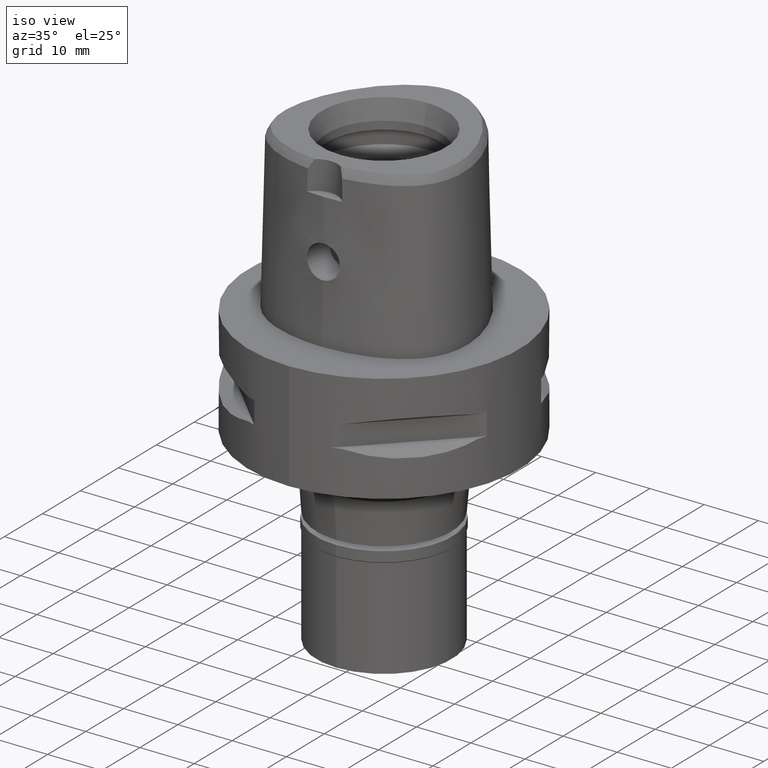
[diagram: clean part render]
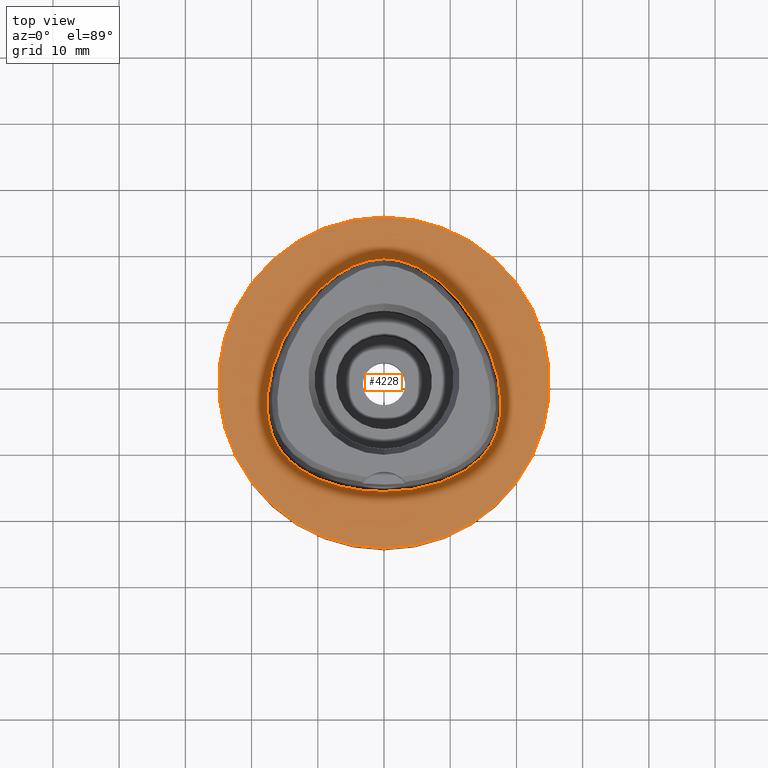
[diagram: tour spotlight — one face highlighted and labeled with its STEP entity id]
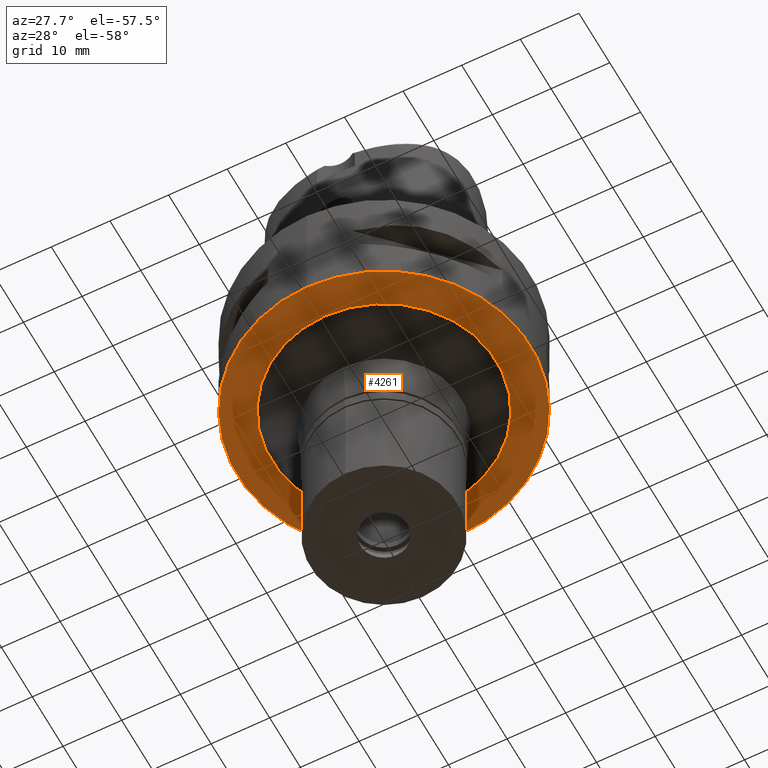
[diagram: tour spotlight — one face highlighted and labeled with its STEP entity id]
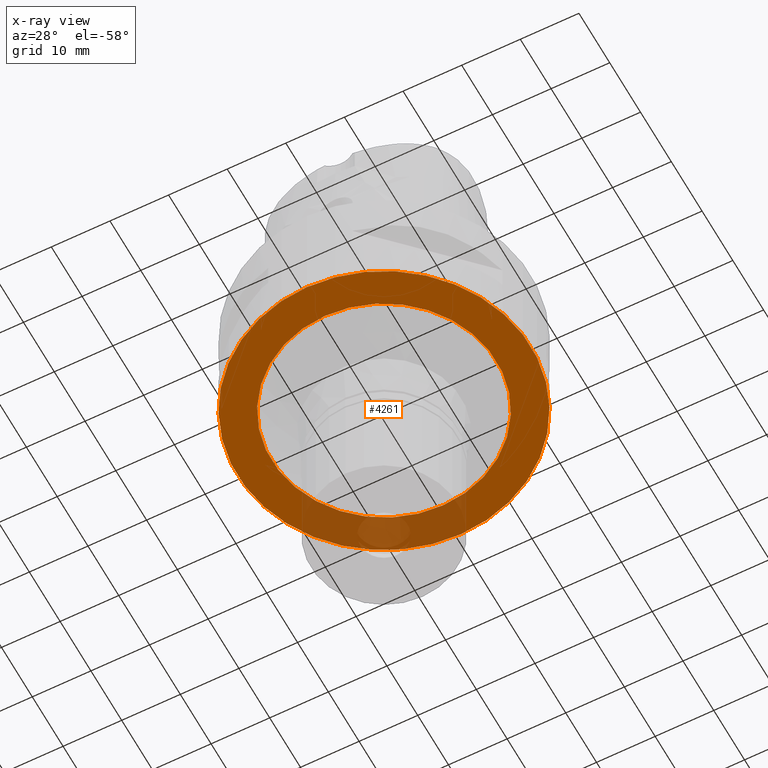
[diagram: x-ray of the same camera — body ghosted, this tour face saturated]
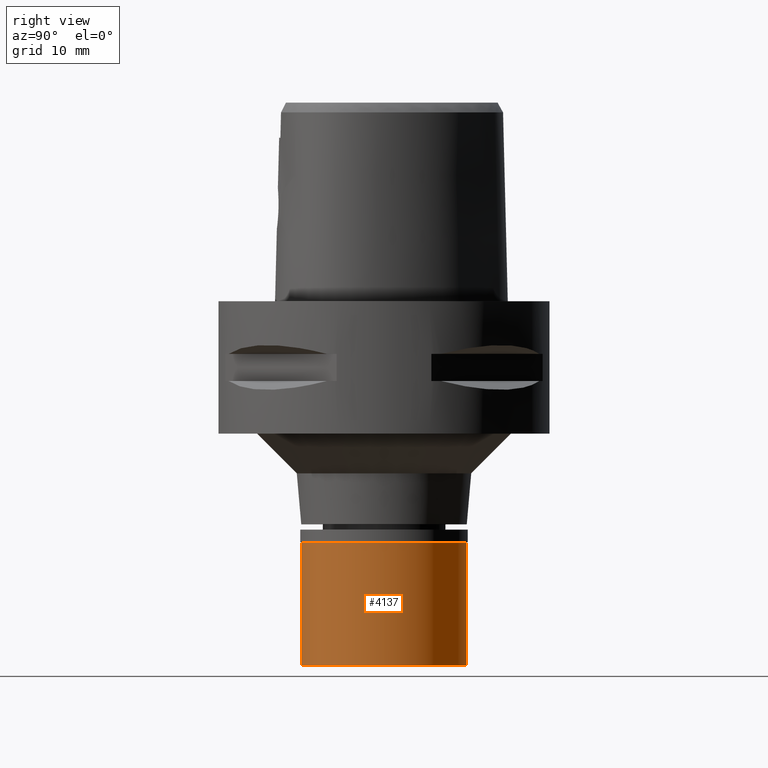
[diagram: tour spotlight — one face highlighted and labeled with its STEP entity id]
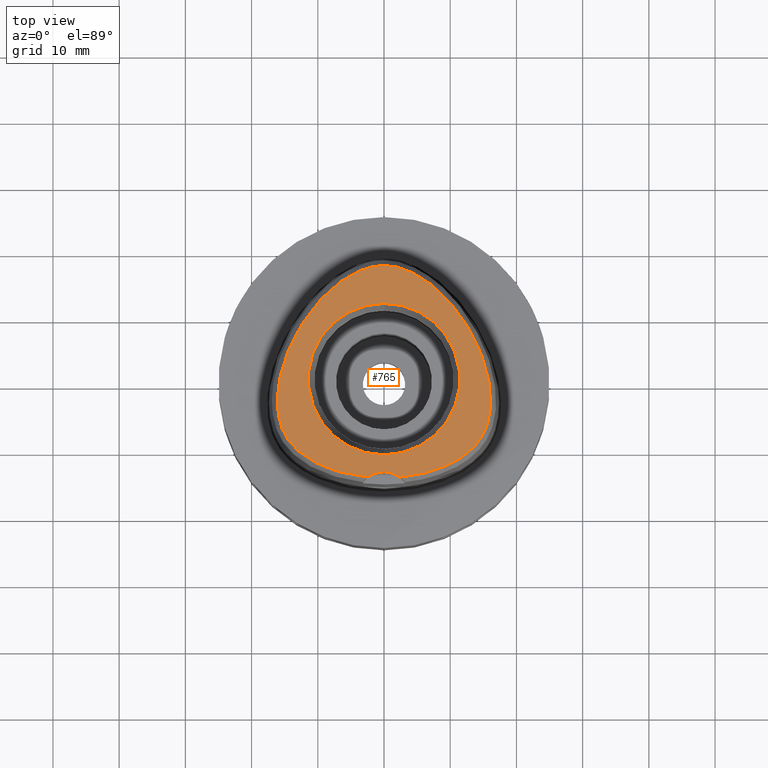
[diagram: tour spotlight — one face highlighted and labeled with its STEP entity id]
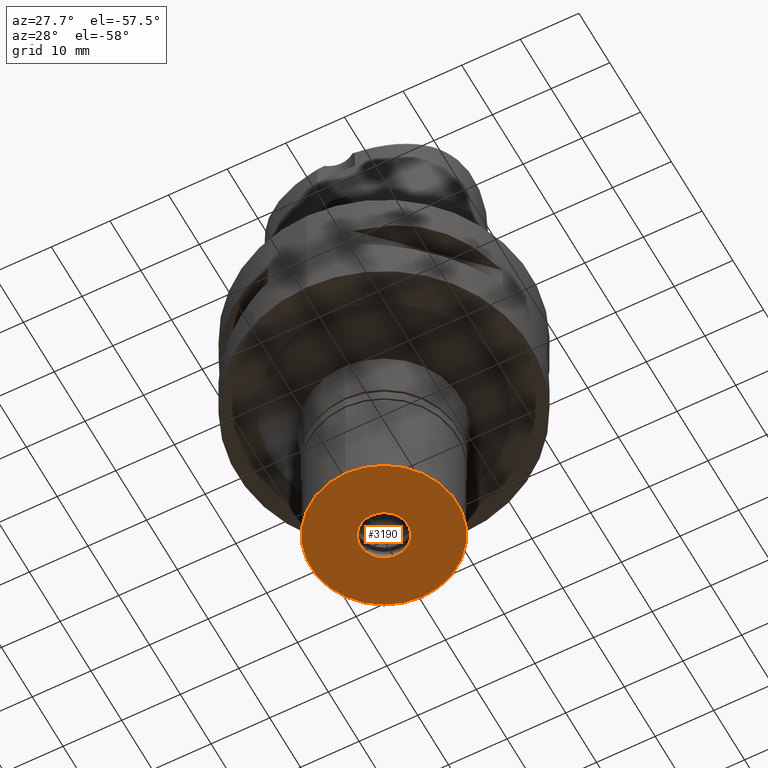
[diagram: tour spotlight — one face highlighted and labeled with its STEP entity id]
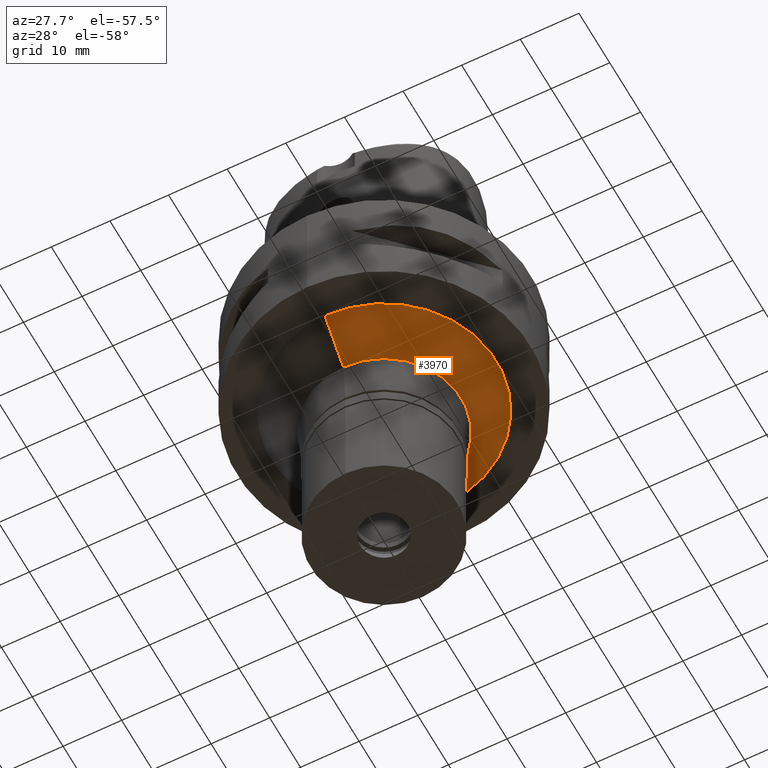
[diagram: tour spotlight — one face highlighted and labeled with its STEP entity id]
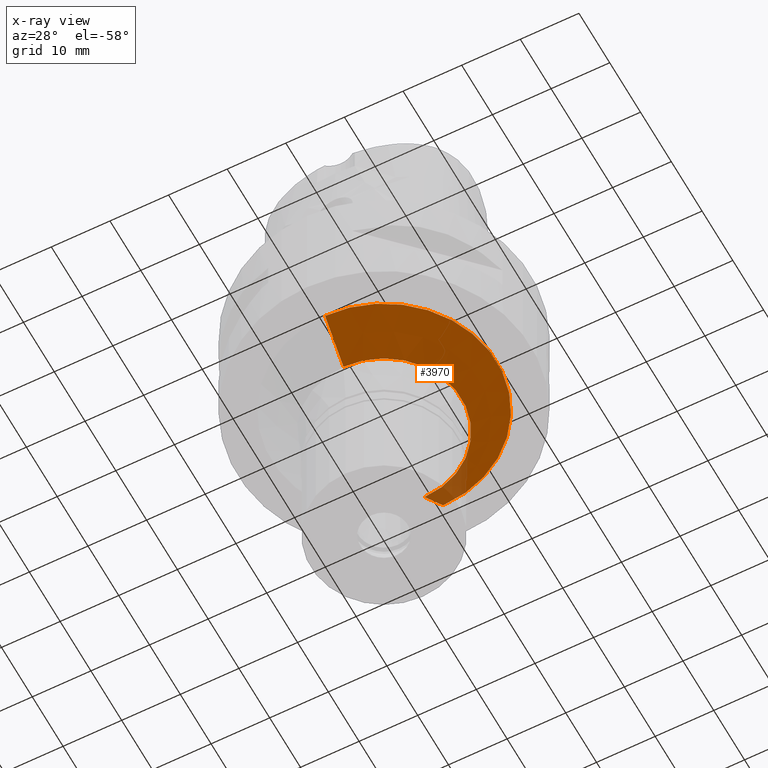
[diagram: x-ray of the same camera — body ghosted, this tour face saturated]
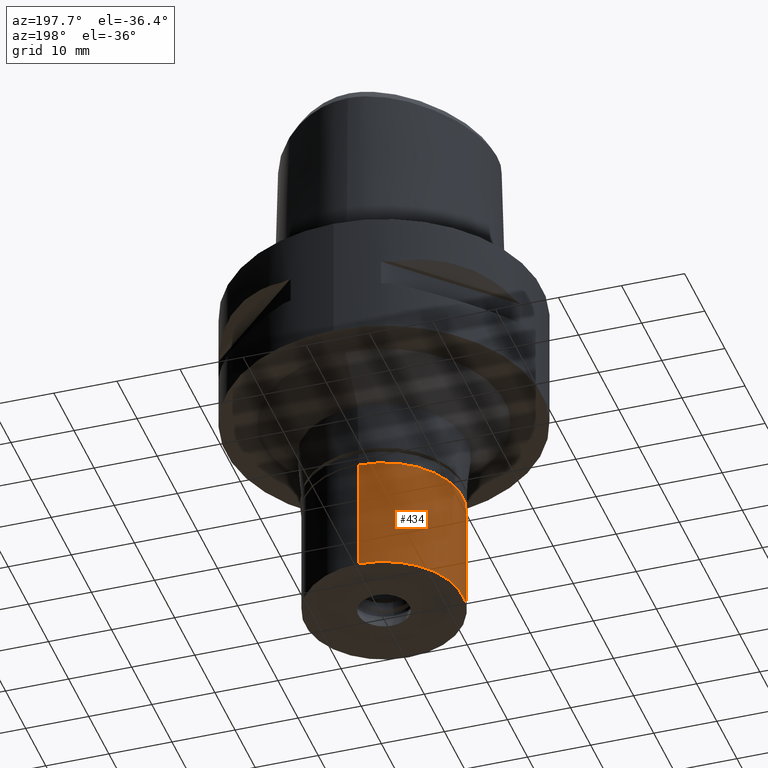
[diagram: tour spotlight — one face highlighted and labeled with its STEP entity id]
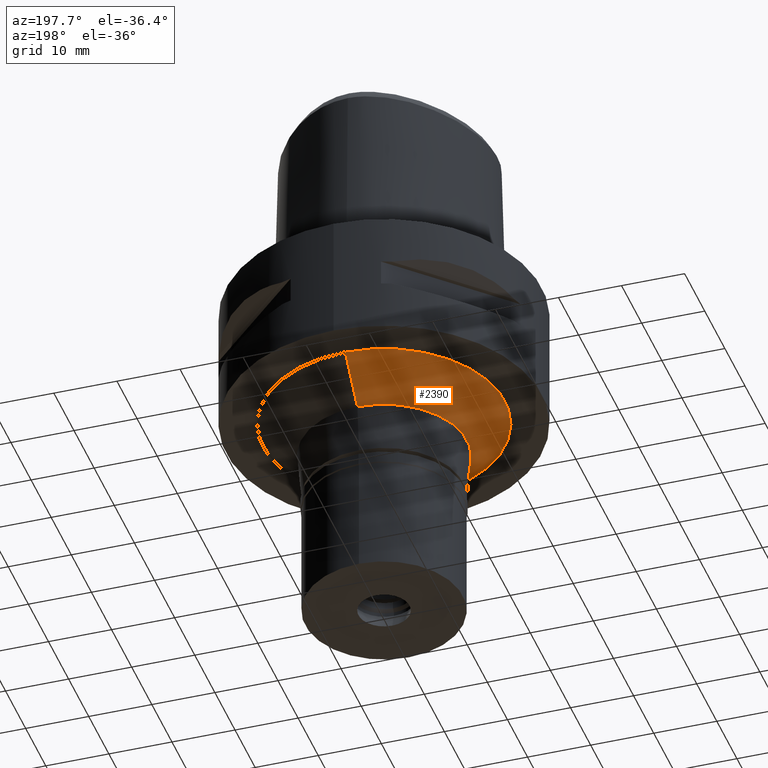
[diagram: tour spotlight — one face highlighted and labeled with its STEP entity id]
A machine part: a face-by-face anatomy tour. The part has 97 B-rep faces; the first image is the clean iso view, then the 8 largest visible faces are spotlighted one at a time (largest first), each with its STEP entity span.

Face 1 — top view, entity #4228. In plain terms, the highlighted planar face has unit normal (0, 0, -1).
Definition (entity closure, byte-faithful):
#140 = CARTESIAN_POINT ( 'NONE',  ( -16.66912842037839226, -8.445800780798439433, 4.443277703777316623E-08 ) ) ;
#197 = DIRECTION ( 'NONE',  ( 0.0000000000000000000, 1.000000000000000000, 0.0000000000000000000 ) ) ;
#202 = CARTESIAN_POINT ( 'NONE',  ( -6.810748086789999579E-14, -16.45500000000000185, 2.176407202607000168E-13 ) ) ;
#255 = CIRCLE ( 'NONE', #3500, 25.00000000000000000 ) ;
#285 = EDGE_CURVE ( 'NONE', #3784, #2383, #2960, .T. ) ;
#513 = CARTESIAN_POINT ( 'NONE',  ( -17.16495051673603811, -7.165908202807186989, 4.443277703777316623E-08 ) ) ;
#523 = EDGE_CURVE ( 'NONE', #2383, #3784, #255, .T. ) ;
#680 = ORIENTED_EDGE ( 'NONE', *, *, #1968, .F. ) ;
#740 = CARTESIAN_POINT ( 'NONE',  ( 7.967839668688589505, 15.83070313068314938, -2.866744383111380357E-07 ) ) ;
#760 = CARTESIAN_POINT ( 'NONE',  ( 17.56373943645514757, -5.455996094769079541, -2.866744383111380357E-07 ) ) ;
#798 = EDGE_LOOP ( 'NONE', ( #1086, #1602 ) ) ;
#809 = CARTESIAN_POINT ( 'NONE',  ( 0.6801907863886119676, 18.69500000716721644, -2.866744383111380357E-07 ) ) ;
#978 = B_SPLINE_CURVE_WITH_KNOTS ( 'NONE', 3,
 ( #4437, #1956, #3437, #1584, #1515, #3074, #4522, #1236, #4173, #4455, #2354, #513, #140, #2987, #1149, #1169, #2277, #3739, #1907, #2740, #3864, #202 ),
 .UNSPECIFIED., .F., .F.,
 ( 4, 1, 1, 1, 1, 1, 1, 1, 1, 1, 1, 1, 1, 1, 1, 1, 1, 1, 1, 4 ),
 ( 0.0000000000000000000, 0.04166666666892000076, 0.08333333333549000632, 0.1666666666687000031, 0.2500000000018000046, 0.3333333333349000061, 0.4166666666681000386, 0.5000000000012000401, 0.5416666666678000563, 0.5833333333343000415, 0.6250000000008999468, 0.6458333333342000104, 0.6666666666675000741, 0.6875000000008000267, 0.7083333333340000593, 0.7500000000005999645, 0.7916666666673000119, 0.8333333333337999971, 0.9166666666670000296, 1.000000000000000000 ),
 .UNSPECIFIED. ) ;
#985 = CARTESIAN_POINT ( 'NONE',  ( -6.810748086789999579E-14, -16.45500000000000185, 2.176407202607000168E-13 ) ) ;
#1086 = ORIENTED_EDGE ( 'NONE', *, *, #285, .F. ) ;
#1105 = CARTESIAN_POINT ( 'NONE',  ( 1.147843598989999933E-10, 18.69499999997000117, 2.164194749336000005E-13 ) ) ;
#1132 = CARTESIAN_POINT ( 'NONE',  ( 2.040572359143327130, 18.55015625706449001, -2.866744383111380357E-07 ) ) ;
#1149 = CARTESIAN_POINT ( 'NONE',  ( -15.64884224165484561, -10.21298828059129171, 4.443277703777316623E-08 ) ) ;
#1169 = CARTESIAN_POINT ( 'NONE',  ( -14.78833380319430013, -11.28232910079319673, 4.443277703777316623E-08 ) ) ;
#1189 = CARTESIAN_POINT ( 'NONE',  ( 0.0000000000000000000, -25.00000000000000000, 0.0000000000000000000 ) ) ;
#1229 = DIRECTION ( 'NONE',  ( 0.0000000000000000000, 0.0000000000000000000, -1.000000000000000000 ) ) ;
#1236 = CARTESIAN_POINT ( 'NONE',  ( -16.51672824674871265, 3.703437499621182738, 4.443277703777316623E-08 ) ) ;
#1269 = DIRECTION ( 'NONE',  ( 0.0000000000000000000, 0.0000000000000000000, -1.000000000000000000 ) ) ;
#1289 = FACE_BOUND ( 'NONE', #3171, .T. ) ;
#1333 = CARTESIAN_POINT ( 'NONE',  ( 14.78833380921588869, -11.28232910651468579, -2.866744383111380357E-07 ) ) ;
#1450 = CARTESIAN_POINT ( 'NONE',  ( 16.66912842795766281, -8.445800784167504460, -2.866744383111380357E-07 ) ) ;
#1453 = AXIS2_PLACEMENT_3D ( 'NONE', #2769, #1269, #4503 ) ;
#1515 = CARTESIAN_POINT ( 'NONE',  ( -7.967839663532677363, 15.83070312411947000, 4.443277703777316623E-08 ) ) ;
#1543 = CARTESIAN_POINT ( 'NONE',  ( 17.16495052469673865, -7.165908205171586332, -2.866744383111380357E-07 ) ) ;
#1545 = PLANE ( 'NONE',  #1453 ) ;
#1584 = CARTESIAN_POINT ( 'NONE',  ( -4.728927206338632061, 17.73480468648083885, 4.443277703777316623E-08 ) ) ;
#1602 = ORIENTED_EDGE ( 'NONE', *, *, #523, .F. ) ;
#1802 = CARTESIAN_POINT ( 'NONE',  ( 0.0000000000000000000, 25.00000000000000000, 0.0000000000000000000 ) ) ;
#1872 = B_SPLINE_CURVE_WITH_KNOTS ( 'NONE', 3,
 ( #985, #2451, #4270, #3178, #3912, #4622, #1333, #2816, #3393, #1450, #1543, #760, #4106, #4418, #2225, #4440, #4130, #740, #4080, #1132, #809, #2253 ),
 .UNSPECIFIED., .F., .F.,
 ( 4, 1, 1, 1, 1, 1, 1, 1, 1, 1, 1, 1, 1, 1, 1, 1, 1, 1, 1, 4 ),
 ( 0.0000000000000000000, 0.08333333333324000058, 0.1666666666665000129, 0.2083333333331000015, 0.2499999999996999900, 0.2916666666664000096, 0.3124999999996999622, 0.3333333333328999948, 0.3541666666663000340, 0.3749999999995999866, 0.4166666666663000340, 0.4583333333328000192, 0.4999999999994999555, 0.5833333333326999881, 0.6666666666660000518, 0.7499999999991999733, 0.8333333333324000058, 0.9166666666657000695, 0.9583333333322999747, 1.000000000000000000 ),
 .UNSPECIFIED. ) ;
#1907 = CARTESIAN_POINT ( 'NONE',  ( -8.946741555804317514, -15.03902343644933559, 4.443277703777316623E-08 ) ) ;
#1956 = CARTESIAN_POINT ( 'NONE',  ( -0.6801907857718990646, 18.69499999889379183, 4.443277703777315961E-08 ) ) ;
#1968 = EDGE_CURVE ( 'NONE', #2268, #3157, #978, .T. ) ;
#2139 = CARTESIAN_POINT ( 'NONE',  ( -6.810748086789999579E-14, -16.45500000000000185, 2.176407202607000168E-13 ) ) ;
#2225 = CARTESIAN_POINT ( 'NONE',  ( 16.51672825458816618, 3.703437502445888541, -2.866744383111380357E-07 ) ) ;
#2253 = CARTESIAN_POINT ( 'NONE',  ( 1.147843598989999933E-10, 18.69499999997000117, 2.164194749336000005E-13 ) ) ;
#2268 = VERTEX_POINT ( 'NONE', #1105 ) ;
#2277 = CARTESIAN_POINT ( 'NONE',  ( -13.50690093411496306, -12.48264648350073003, 4.443277703777316623E-08 ) ) ;
#2354 = CARTESIAN_POINT ( 'NONE',  ( -17.56373942823087120, -5.455996093592093921, 4.443277703777316623E-08 ) ) ;
#2383 = VERTEX_POINT ( 'NONE', #1189 ) ;
#2451 = CARTESIAN_POINT ( 'NONE',  ( 1.683697722949345277, -16.45500000716620193, -2.866744383111379827E-07 ) ) ;
#2740 = CARTESIAN_POINT ( 'NONE',  ( -5.051093167375960924, -16.15562499889601611, 4.443277703777316623E-08 ) ) ;
#2769 = CARTESIAN_POINT ( 'NONE',  ( 0.0000000000000000000, 1.224646799146999965E-14, 0.0000000000000000000 ) ) ;
#2816 = CARTESIAN_POINT ( 'NONE',  ( 15.64884224836528936, -10.21298828547461568, -2.866744383111380357E-07 ) ) ;
#2889 = DIRECTION ( 'NONE',  ( 0.0000000000000000000, -1.000000000000000000, 0.0000000000000000000 ) ) ;
#2960 = CIRCLE ( 'NONE', #3791, 25.00000000000000000 ) ;
#2987 = CARTESIAN_POINT ( 'NONE',  ( -16.20602471867586658, -9.356552733818441325, 4.443277703777316623E-08 ) ) ;
#3043 = ORIENTED_EDGE ( 'NONE', *, *, #3581, .F. ) ;
#3074 = CARTESIAN_POINT ( 'NONE',  ( -11.46563507937857729, 12.45218749927797752, 4.443277703777316623E-08 ) ) ;
#3157 = VERTEX_POINT ( 'NONE', #2139 ) ;
#3171 = EDGE_LOOP ( 'NONE', ( #680, #3043 ) ) ;
#3178 = CARTESIAN_POINT ( 'NONE',  ( 8.946741558643028114, -15.03902344427322113, -2.866744383111380357E-07 ) ) ;
#3393 = CARTESIAN_POINT ( 'NONE',  ( 16.20602472585592579, -9.356552737964948463, -2.866744383111380357E-07 ) ) ;
#3437 = CARTESIAN_POINT ( 'NONE',  ( -2.040572357437918427, 18.55015624889870551, 4.443277703777316623E-08 ) ) ;
#3484 = CARTESIAN_POINT ( 'NONE',  ( 0.0000000000000000000, 1.254528181046999847E-14, 0.0000000000000000000 ) ) ;
#3500 = AXIS2_PLACEMENT_3D ( 'NONE', #4746, #3987, #2889 ) ;
#3581 = EDGE_CURVE ( 'NONE', #3157, #2268, #1872, .T. ) ;
#3739 = CARTESIAN_POINT ( 'NONE',  ( -11.68694516528609739, -13.70394531153452178, 4.443277703777316623E-08 ) ) ;
#3784 = VERTEX_POINT ( 'NONE', #1802 ) ;
#3791 = AXIS2_PLACEMENT_3D ( 'NONE', #3484, #1229, #197 ) ;
#3800 = FACE_OUTER_BOUND ( 'NONE', #798, .T. ) ;
#3864 = CARTESIAN_POINT ( 'NONE',  ( -1.683697722462703439, -16.45499999888638953, 4.443277703777316623E-08 ) ) ;
#3912 = CARTESIAN_POINT ( 'NONE',  ( 11.68694516939769557, -13.70394531874968536, -2.866744383111380357E-07 ) ) ;
#3987 = DIRECTION ( 'NONE',  ( 0.0000000000000000000, 0.0000000000000000000, -1.000000000000000000 ) ) ;
#4080 = CARTESIAN_POINT ( 'NONE',  ( 4.728927209895946504, 17.73480469404342585, -2.866744383111380357E-07 ) ) ;
#4106 = CARTESIAN_POINT ( 'NONE',  ( 17.71143736280363257, -3.269218749953516134, -2.866744383111380357E-07 ) ) ;
#4130 = CARTESIAN_POINT ( 'NONE',  ( 11.46563508573905565, 12.45218750464827195, -2.866744383111380357E-07 ) ) ;
#4173 = CARTESIAN_POINT ( 'NONE',  ( -17.49754712197084672, -0.2285937501950306705, 4.443277703777316623E-08 ) ) ;
#4228 = ADVANCED_FACE ( 'NONE', ( #3800, #1289 ), #1545, .F. ) ;
#4270 = CARTESIAN_POINT ( 'NONE',  ( 5.051093168843441283, -16.15562500709472360, -2.866744383111380357E-07 ) ) ;
#4418 = CARTESIAN_POINT ( 'NONE',  ( 17.49754713017080832, -0.2285937487416755398, -2.866744383111380357E-07 ) ) ;
#4437 = CARTESIAN_POINT ( 'NONE',  ( 1.147843598989999933E-10, 18.69499999997000117, 2.164194749336000005E-13 ) ) ;
#4440 = CARTESIAN_POINT ( 'NONE',  ( 14.38008120313528160, 8.302343753601144627, -2.866744383111380357E-07 ) ) ;
#4455 = CARTESIAN_POINT ( 'NONE',  ( -17.71143735449694745, -3.269218750007801155, 4.443277703777316623E-08 ) ) ;
#4503 = DIRECTION ( 'NONE',  ( 0.0000000000000000000, -1.000000000000000000, 0.0000000000000000000 ) ) ;
#4522 = CARTESIAN_POINT ( 'NONE',  ( -14.38008119593263423, 8.302343749441114085, 4.443277703777316623E-08 ) ) ;
#4622 = CARTESIAN_POINT ( 'NONE',  ( 13.50690093924401936, -12.48264649003484550, -2.866744383111380357E-07 ) ) ;
#4746 = CARTESIAN_POINT ( 'NONE',  ( 0.0000000000000000000, 1.254528181046999847E-14, 0.0000000000000000000 ) ) ;

Face 2 — auxiliary view, entity #4261. An x-ray twin of the same camera follows (body ghosted, this face saturated) — the face is partly hidden behind the body. In plain terms, the highlighted planar face has unit normal (0, 0, -1).
Definition (entity closure, byte-faithful):
#143 = CIRCLE ( 'NONE', #1019, 19.17366270915000115 ) ;
#172 = DIRECTION ( 'NONE',  ( 0.0000000000000000000, 0.0000000000000000000, -1.000000000000000000 ) ) ;
#183 = PLANE ( 'NONE',  #1600 ) ;
#301 = EDGE_CURVE ( 'NONE', #1958, #1375, #4165, .T. ) ;
#391 = AXIS2_PLACEMENT_3D ( 'NONE', #1937, #2360, #1590 ) ;
#527 = ORIENTED_EDGE ( 'NONE', *, *, #301, .F. ) ;
#545 = DIRECTION ( 'NONE',  ( 0.0000000000000000000, 0.0000000000000000000, -1.000000000000000000 ) ) ;
#604 = DIRECTION ( 'NONE',  ( 0.0000000000000000000, -1.000000000000000000, 0.0000000000000000000 ) ) ;
#616 = EDGE_LOOP ( 'NONE', ( #3924, #4583 ) ) ;
#768 = CIRCLE ( 'NONE', #391, 25.00000000000000000 ) ;
#887 = DIRECTION ( 'NONE',  ( 0.0000000000000000000, 0.0000000000000000000, -1.000000000000000000 ) ) ;
#912 = FACE_BOUND ( 'NONE', #616, .T. ) ;
#947 = CARTESIAN_POINT ( 'NONE',  ( 0.0000000000000000000, 25.00000000000000000, -20.00000000000000000 ) ) ;
#1019 = AXIS2_PLACEMENT_3D ( 'NONE', #3846, #545, #2008 ) ;
#1242 = CARTESIAN_POINT ( 'NONE',  ( 0.0000000000000000000, 0.0000000000000000000, -20.00000000000000000 ) ) ;
#1375 = VERTEX_POINT ( 'NONE', #947 ) ;
#1590 = DIRECTION ( 'NONE',  ( 0.0000000000000000000, 1.000000000000000000, 0.0000000000000000000 ) ) ;
#1600 = AXIS2_PLACEMENT_3D ( 'NONE', #1242, #887, #1616 ) ;
#1607 = CARTESIAN_POINT ( 'NONE',  ( 0.0000000000000000000, 0.0000000000000000000, -20.00000000000000000 ) ) ;
#1616 = DIRECTION ( 'NONE',  ( 0.0000000000000000000, -1.000000000000000000, 0.0000000000000000000 ) ) ;
#1654 = CARTESIAN_POINT ( 'NONE',  ( 0.0000000000000000000, 1.254528181046999847E-14, -20.00000000000000000 ) ) ;
#1762 = AXIS2_PLACEMENT_3D ( 'NONE', #1607, #172, #604 ) ;
#1935 = CARTESIAN_POINT ( 'NONE',  ( 0.0000000000000000000, 19.17366270915000115, -20.00000000000000000 ) ) ;
#1937 = CARTESIAN_POINT ( 'NONE',  ( 0.0000000000000000000, 1.254528181046999847E-14, -20.00000000000000000 ) ) ;
#1958 = VERTEX_POINT ( 'NONE', #4102 ) ;
#2008 = DIRECTION ( 'NONE',  ( 0.0000000000000000000, 1.000000000000000000, 0.0000000000000000000 ) ) ;
#2026 = DIRECTION ( 'NONE',  ( 0.0000000000000000000, -1.000000000000000000, 0.0000000000000000000 ) ) ;
#2304 = FACE_OUTER_BOUND ( 'NONE', #4168, .T. ) ;
#2348 = DIRECTION ( 'NONE',  ( 0.0000000000000000000, 0.0000000000000000000, 1.000000000000000000 ) ) ;
#2360 = DIRECTION ( 'NONE',  ( 0.0000000000000000000, 0.0000000000000000000, 1.000000000000000000 ) ) ;
#2693 = CIRCLE ( 'NONE', #1762, 19.17366270915000115 ) ;
#3532 = EDGE_CURVE ( 'NONE', #4113, #3731, #2693, .T. ) ;
#3731 = VERTEX_POINT ( 'NONE', #1935 ) ;
#3846 = CARTESIAN_POINT ( 'NONE',  ( 0.0000000000000000000, 0.0000000000000000000, -20.00000000000000000 ) ) ;
#3924 = ORIENTED_EDGE ( 'NONE', *, *, #4311, .F. ) ;
#4102 = CARTESIAN_POINT ( 'NONE',  ( 0.0000000000000000000, -25.00000000000000000, -20.00000000000000000 ) ) ;
#4113 = VERTEX_POINT ( 'NONE', #4463 ) ;
#4138 = EDGE_CURVE ( 'NONE', #1375, #1958, #768, .T. ) ;
#4165 = CIRCLE ( 'NONE', #4469, 25.00000000000000000 ) ;
#4168 = EDGE_LOOP ( 'NONE', ( #4221, #527 ) ) ;
#4221 = ORIENTED_EDGE ( 'NONE', *, *, #4138, .F. ) ;
#4261 = ADVANCED_FACE ( 'NONE', ( #2304, #912 ), #183, .T. ) ;
#4311 = EDGE_CURVE ( 'NONE', #3731, #4113, #143, .T. ) ;
#4463 = CARTESIAN_POINT ( 'NONE',  ( 0.0000000000000000000, -19.17366270915000115, -20.00000000000000000 ) ) ;
#4469 = AXIS2_PLACEMENT_3D ( 'NONE', #1654, #2348, #2026 ) ;
#4583 = ORIENTED_EDGE ( 'NONE', *, *, #3532, .F. ) ;

Face 3 — right view, entity #4137. In plain terms, the highlighted cylindrical surface (partial cylindrical patch) has radius 12.5 mm, axis along (0, 0, -1).
Definition (entity closure, byte-faithful):
#82 = DIRECTION ( 'NONE',  ( 0.0000000000000000000, 0.0000000000000000000, -1.000000000000000000 ) ) ;
#350 = EDGE_CURVE ( 'NONE', #1885, #3994, #4400, .T. ) ;
#433 = DIRECTION ( 'NONE',  ( 0.0000000000000000000, 0.0000000000000000000, -1.000000000000000000 ) ) ;
#526 = DIRECTION ( 'NONE',  ( 0.0000000000000000000, 0.0000000000000000000, -1.000000000000000000 ) ) ;
#704 = VERTEX_POINT ( 'NONE', #1878 ) ;
#941 = CARTESIAN_POINT ( 'NONE',  ( 0.0000000000000000000, 0.0000000000000000000, 0.0000000000000000000 ) ) ;
#958 = DIRECTION ( 'NONE',  ( 0.0000000000000000000, 0.0000000000000000000, 1.000000000000000000 ) ) ;
#974 = DIRECTION ( 'NONE',  ( 0.0000000000000000000, 0.0000000000000000000, -1.000000000000000000 ) ) ;
#983 = CARTESIAN_POINT ( 'NONE',  ( 0.0000000000000000000, 0.0000000000000000000, -20.50000000000000000 ) ) ;
#1002 = ORIENTED_EDGE ( 'NONE', *, *, #2884, .F. ) ;
#1538 = CARTESIAN_POINT ( 'NONE',  ( 0.0000000000000000000, -12.50000000000000000, -20.50000000000000000 ) ) ;
#1546 = VECTOR ( 'NONE', #526, 1000.000000000000000 ) ;
#1705 = AXIS2_PLACEMENT_3D ( 'NONE', #2092, #974, #1988 ) ;
#1757 = CARTESIAN_POINT ( 'NONE',  ( 0.0000000000000000000, 12.50000000000000000, -2.000000000000000000 ) ) ;
#1878 = CARTESIAN_POINT ( 'NONE',  ( 0.0000000000000000000, -12.50000000000000000, -2.000000000000000000 ) ) ;
#1885 = VERTEX_POINT ( 'NONE', #1538 ) ;
#1988 = DIRECTION ( 'NONE',  ( 0.0000000000000000000, 1.000000000000000000, 0.0000000000000000000 ) ) ;
#2092 = CARTESIAN_POINT ( 'NONE',  ( 0.0000000000000000000, 0.0000000000000000000, -2.000000000000000000 ) ) ;
#2420 = AXIS2_PLACEMENT_3D ( 'NONE', #983, #958, #4190 ) ;
#2516 = VERTEX_POINT ( 'NONE', #1757 ) ;
#2631 = ORIENTED_EDGE ( 'NONE', *, *, #2949, .T. ) ;
#2671 = LINE ( 'NONE', #4086, #4539 ) ;
#2716 = CIRCLE ( 'NONE', #1705, 12.50000000000000000 ) ;
#2884 = EDGE_CURVE ( 'NONE', #2516, #3994, #2671, .T. ) ;
#2921 = CARTESIAN_POINT ( 'NONE',  ( 0.0000000000000000000, 12.50000000000000000, -20.50000000000000000 ) ) ;
#2949 = EDGE_CURVE ( 'NONE', #704, #1885, #3473, .T. ) ;
#3092 = EDGE_CURVE ( 'NONE', #2516, #704, #2716, .T. ) ;
#3203 = ORIENTED_EDGE ( 'NONE', *, *, #350, .T. ) ;
#3467 = DIRECTION ( 'NONE',  ( 0.0000000000000000000, -1.000000000000000000, 0.0000000000000000000 ) ) ;
#3471 = AXIS2_PLACEMENT_3D ( 'NONE', #941, #82, #3467 ) ;
#3473 = LINE ( 'NONE', #4587, #1546 ) ;
#3768 = CYLINDRICAL_SURFACE ( 'NONE', #3471, 12.50000000000000000 ) ;
#3874 = EDGE_LOOP ( 'NONE', ( #4447, #2631, #3203, #1002 ) ) ;
#3994 = VERTEX_POINT ( 'NONE', #2921 ) ;
#4086 = CARTESIAN_POINT ( 'NONE',  ( 0.0000000000000000000, 12.50000000000000000, -2.000000000000000000 ) ) ;
#4137 = ADVANCED_FACE ( 'NONE', ( #4556 ), #3768, .T. ) ;
#4190 = DIRECTION ( 'NONE',  ( 0.0000000000000000000, -1.000000000000000000, 0.0000000000000000000 ) ) ;
#4400 = CIRCLE ( 'NONE', #2420, 12.50000000000000000 ) ;
#4447 = ORIENTED_EDGE ( 'NONE', *, *, #3092, .T. ) ;
#4539 = VECTOR ( 'NONE', #433, 1000.000000000000000 ) ;
#4556 = FACE_OUTER_BOUND ( 'NONE', #3874, .T. ) ;
#4587 = CARTESIAN_POINT ( 'NONE',  ( 0.0000000000000000000, -12.50000000000000000, -2.000000000000000000 ) ) ;

Face 4 — top view, entity #765. In plain terms, the highlighted planar face has unit normal (0, 0, 1).
Definition (entity closure, byte-faithful):
#12 = CARTESIAN_POINT ( 'NONE',  ( -4.150496093830861710, -14.59917355179697473, 29.99999999999819167 ) ) ;
#36 = CARTESIAN_POINT ( 'NONE',  ( -2.535517866335891046, -14.79323888261663811, 29.99999999999925038 ) ) ;
#264 = CARTESIAN_POINT ( 'NONE',  ( 0.5691917915716111498, 17.14006060248800623, 30.00000000000890665 ) ) ;
#266 = CARTESIAN_POINT ( 'NONE',  ( -16.12543283909119296, -3.535877041748176186, 29.99999999999769784 ) ) ;
#286 = CARTESIAN_POINT ( 'NONE',  ( 12.68590586676658205, 7.870511070824674604, 30.00000000000894218 ) ) ;
#309 = CARTESIAN_POINT ( 'NONE',  ( 10.27891984618217869, 11.24296481357677102, 29.99999999999591083 ) ) ;
#310 = CARTESIAN_POINT ( 'NONE',  ( -1.772880577021871851, 16.97196055716097973, 29.99999999999620925 ) ) ;
#323 = DIRECTION ( 'NONE',  ( 0.0000000000000000000, 0.0000000000000000000, 1.000000000000000000 ) ) ;
#334 = CARTESIAN_POINT ( 'NONE',  ( 11.36765809994903442, -12.04801986072756748, 30.00000000000915534 ) ) ;
#360 = CARTESIAN_POINT ( 'NONE',  ( 15.51702143705541559, -7.148634146068902240, 29.99999999999612399 ) ) ;
#382 = CARTESIAN_POINT ( 'NONE',  ( -6.650243356160658870, -14.05992414833134774, 30.00000000000126477 ) ) ;
#448 = CARTESIAN_POINT ( 'NONE',  ( -7.776737509123019088, -13.71663015822724319, 30.00000000000059686 ) ) ;
#525 = EDGE_CURVE ( 'NONE', #4388, #3978, #1040, .T. ) ;
#598 = CARTESIAN_POINT ( 'NONE',  ( -0.5679008307149479018, 17.14013367087826722, 29.99999999999776534 ) ) ;
#624 = CARTESIAN_POINT ( 'NONE',  ( -12.68647747556977556, 7.869569494475723737, 29.99999999999895905 ) ) ;
#642 = AXIS2_PLACEMENT_3D ( 'NONE', #4210, #1629, #2422 ) ;
#648 = CARTESIAN_POINT ( 'NONE',  ( 9.755668685251869476, -12.92551394023231026, 30.00000000000316902 ) ) ;
#650 = CARTESIAN_POINT ( 'NONE',  ( -12.65209017756093779, -11.12734424253349985, 29.99999999999557687 ) ) ;
#661 = DIRECTION ( 'NONE',  ( 0.0000000000000000000, 1.000000000000000000, 0.0000000000000000000 ) ) ;
#669 = CARTESIAN_POINT ( 'NONE',  ( 4.159771979225008742, -14.59766906204210990, 30.00000000000738964 ) ) ;
#671 = CARTESIAN_POINT ( 'NONE',  ( -10.27907733182600225, 11.24278573582314777, 29.99999999999090505 ) ) ;
#689 = CIRCLE ( 'NONE', #4600, 11.43782217350000074 ) ;
#691 = CARTESIAN_POINT ( 'NONE',  ( 13.38374903490167789, 6.636915464740381410, 30.00000000000710543 ) ) ;
#692 = CARTESIAN_POINT ( 'NONE',  ( -11.11900396222441323, 10.19116357425597741, 29.99999999999780798 ) ) ;
#719 = CARTESIAN_POINT ( 'NONE',  ( 1.774127352510333600, 16.97169788998945705, 30.00000000000154188 ) ) ;
#741 = CARTESIAN_POINT ( 'NONE',  ( 10.60500548643565999, -12.49469941439520859, 30.00000000000331468 ) ) ;
#765 = ADVANCED_FACE ( 'NONE', ( #3808, #2678 ), #843, .T. ) ;
#801 = CARTESIAN_POINT ( 'NONE',  ( -6.301949014101000459E-11, 17.15328888647999861, 30.00000000000000000 ) ) ;
#843 = PLANE ( 'NONE',  #642 ) ;
#848 = CARTESIAN_POINT ( 'NONE',  ( -2.406542353497000075, -14.80491723099000012, 30.00000000000000000 ) ) ;
#976 = CARTESIAN_POINT ( 'NONE',  ( -12.04571048960022495, -11.59259605427604178, 29.99999999999977973 ) ) ;
#998 = CARTESIAN_POINT ( 'NONE',  ( -9.420854217684814458, 12.20577134109744399, 29.99999999999689848 ) ) ;
#1021 = CARTESIAN_POINT ( 'NONE',  ( 12.65514534656388790, -11.12483370674423178, 30.00000000000803979 ) ) ;
#1023 = CARTESIAN_POINT ( 'NONE',  ( -4.498660734198981714, 15.99814720005752378, 29.99999999999128519 ) ) ;
#1040 = CIRCLE ( 'NONE', #3034, 11.43782217350000074 ) ;
#1046 = CARTESIAN_POINT ( 'NONE',  ( 1.161482229273079314, 17.07843133414223402, 30.00000000001013234 ) ) ;
#1047 = CARTESIAN_POINT ( 'NONE',  ( -14.44611813752681329, -9.226676124713311111, 29.99999999998868816 ) ) ;
#1065 = CARTESIAN_POINT ( 'NONE',  ( -13.38439869301422291, 6.635703175840056645, 29.99999999999766231 ) ) ;
#1085 = CARTESIAN_POINT ( 'NONE',  ( 15.71128456931534778, -6.534031654962747737, 30.00000000000475353 ) ) ;
#1226 = ORIENTED_EDGE ( 'NONE', *, *, #3381, .F. ) ;
#1322 = CARTESIAN_POINT ( 'NONE',  ( -7.700642921101771954, 13.84415306341625573, 29.99999999999430145 ) ) ;
#1348 = CARTESIAN_POINT ( 'NONE',  ( -15.04149970408323789, -8.249836848500796904, 30.00000000000435207 ) ) ;
#1368 = CARTESIAN_POINT ( 'NONE',  ( 14.08238499151767975, -9.704590128438020713, 29.99999999999696598 ) ) ;
#1369 = CARTESIAN_POINT ( 'NONE',  ( -6.301949014101000459E-11, 17.15328888647999861, 30.00000000000000000 ) ) ;
#1390 = CARTESIAN_POINT ( 'NONE',  ( 2.538962679605416550, -14.79292722369617863, 30.00000000000775913 ) ) ;
#1414 = CARTESIAN_POINT ( 'NONE',  ( 3.130495111450143142, -14.73481892792061565, 30.00000000000512301 ) ) ;
#1434 = CARTESIAN_POINT ( 'NONE',  ( 9.420872132873483906, 12.20574557692664364, 30.00000000000713385 ) ) ;
#1451 = CARTESIAN_POINT ( 'NONE',  ( 15.90185233182056557, -0.6139199331566099760, 30.00000000000198597 ) ) ;
#1461 = VERTEX_POINT ( 'NONE', #2799 ) ;
#1629 = DIRECTION ( 'NONE',  ( 0.0000000000000000000, 0.0000000000000000000, 1.000000000000000000 ) ) ;
#1729 = CARTESIAN_POINT ( 'NONE',  ( 16.11273027396762458, -2.627494158581015427, 30.00000000000226308 ) ) ;
#1731 = CARTESIAN_POINT ( 'NONE',  ( -16.08550869466753852, -4.376322360225866959, 29.99999999999841904 ) ) ;
#1752 = CARTESIAN_POINT ( 'NONE',  ( 15.87349190487682016, -5.869792298897536398, 30.00000000000097344 ) ) ;
#1754 = CARTESIAN_POINT ( 'NONE',  ( -14.08052509618451609, -9.706873108418600182, 29.99999999998939870 ) ) ;
#1775 = CARTESIAN_POINT ( 'NONE',  ( 5.258649622038390703, 15.58603480843047251, 30.00000000000639133 ) ) ;
#1778 = CARTESIAN_POINT ( 'NONE',  ( -14.01158736112857461, 5.375902008631780582, 29.99999999999129230 ) ) ;
#1823 = CARTESIAN_POINT ( 'NONE',  ( 14.76450668990920079, -8.742560395149485686, 30.00000000000220979 ) ) ;
#1824 = ORIENTED_EDGE ( 'NONE', *, *, #3746, .F. ) ;
#1825 = CARTESIAN_POINT ( 'NONE',  ( 0.0000000000000000000, 1.570609519905999910E-14, 30.00000000000000000 ) ) ;
#1844 = CARTESIAN_POINT ( 'NONE',  ( -8.809985523415749142, -13.33678107331760820, 29.99999999999753797 ) ) ;
#1912 = CARTESIAN_POINT ( 'NONE',  ( 0.0000000000000000000, -11.43782217350000074, 30.00000000000000000 ) ) ;
#2029 = DIRECTION ( 'NONE',  ( 0.0000000000000000000, 0.0000000000000000000, 1.000000000000000000 ) ) ;
#2068 = CARTESIAN_POINT ( 'NONE',  ( -0.1909045559979902218, 17.15328888648427963, 30.00000000000079581 ) ) ;
#2094 = CARTESIAN_POINT ( 'NONE',  ( -3.077178008231378659, 16.60571267458265154, 29.99999999999815969 ) ) ;
#2118 = CARTESIAN_POINT ( 'NONE',  ( 16.12546998862268310, -3.533461825553872782, 30.00000000000370193 ) ) ;
#2120 = CARTESIAN_POINT ( 'NONE',  ( -1.160151454488238532, 17.07862209883666793, 29.99999999998825118 ) ) ;
#2140 = CARTESIAN_POINT ( 'NONE',  ( -15.87300767660467038, -5.872112237378654065, 29.99999999999706191 ) ) ;
#2162 = CARTESIAN_POINT ( 'NONE',  ( -6.862723739080788476, 14.51536572208385500, 29.99999999999532108 ) ) ;
#2186 = CARTESIAN_POINT ( 'NONE',  ( 6.048015628559357815, 15.09357031580105790, 30.00000000000813216 ) ) ;
#2206 = CARTESIAN_POINT ( 'NONE',  ( 8.816245487876106068, -13.33426548781817900, 30.00000000000675371 ) ) ;
#2320 = VERTEX_POINT ( 'NONE', #801 ) ;
#2422 = DIRECTION ( 'NONE',  ( 1.000000000000000000, 0.0000000000000000000, 0.0000000000000000000 ) ) ;
#2442 = CARTESIAN_POINT ( 'NONE',  ( -15.99949242929756998, -5.153835065648771696, 29.99999999999820233 ) ) ;
#2464 = CARTESIAN_POINT ( 'NONE',  ( -3.771910472265106673, 16.33551310926232247, 29.99999999999091571 ) ) ;
#2486 = CARTESIAN_POINT ( 'NONE',  ( 14.55828366953024222, 4.114142377745413803, 30.00000000000171596 ) ) ;
#2487 = CARTESIAN_POINT ( 'NONE',  ( -15.51623783591095673, -7.150856098906213987, 29.99999999999415934 ) ) ;
#2511 = CARTESIAN_POINT ( 'NONE',  ( 7.783816186093179823, -13.71424622167404728, 30.00000000000597922 ) ) ;
#2512 = CARTESIAN_POINT ( 'NONE',  ( -14.55898035934581536, 4.112421202110449592, 29.99999999999579359 ) ) ;
#2531 = CARTESIAN_POINT ( 'NONE',  ( -15.90223487644441391, -0.6162487013686769322, 29.99999999999147349 ) ) ;
#2554 = CARTESIAN_POINT ( 'NONE',  ( 3.772905803807559799, 16.33508552419177207, 30.00000000000406075 ) ) ;
#2584 = CARTESIAN_POINT ( 'NONE',  ( 3.078265684543069369, 16.60532678262917017, 30.00000000000170530 ) ) ;
#2678 = FACE_BOUND ( 'NONE', #3645, .T. ) ;
#2799 = CARTESIAN_POINT ( 'NONE',  ( 2.406543924163999648, -14.80491841401999942, 30.00000000000000000 ) ) ;
#2803 = CARTESIAN_POINT ( 'NONE',  ( -15.39727819200982140, 1.655076005305926357, 29.99999999999507239 ) ) ;
#2848 = CARTESIAN_POINT ( 'NONE',  ( 13.19176257967302845, -10.65479018522934140, 30.00000000000437339 ) ) ;
#2850 = CARTESIAN_POINT ( 'NONE',  ( -16.11283982316655994, -2.629907404753578870, 29.99999999999689138 ) ) ;
#2853 = AXIS2_PLACEMENT_3D ( 'NONE', #3860, #2029, #4496 ) ;
#2873 = CARTESIAN_POINT ( 'NONE',  ( 2.406543924163999648, -14.80491841401999942, 30.00000000000000000 ) ) ;
#2875 = CARTESIAN_POINT ( 'NONE',  ( -15.02099409651202677, 2.867135356160736226, 30.00000000000058975 ) ) ;
#2900 = CARTESIAN_POINT ( 'NONE',  ( -14.76322153899744016, -8.744676018998614353, 29.99999999999224798 ) ) ;
#2919 = CARTESIAN_POINT ( 'NONE',  ( 6.658132732488724947, -14.05774790739158320, 30.00000000000563105 ) ) ;
#2938 = ORIENTED_EDGE ( 'NONE', *, *, #3974, .F. ) ;
#2943 = CARTESIAN_POINT ( 'NONE',  ( 2.412811123804821101, 16.81558681049559212, 30.00000000000958877 ) ) ;
#2977 = B_SPLINE_CURVE_WITH_KNOTS ( 'NONE', 3,
 ( #4365, #4301, #264, #1046, #719, #2943, #2584, #2554, #3600, #1775, #2186, #3993, #3220, #3952, #1434, #309, #3262, #4042, #286, #691, #4709, #2486, #3640, #4346, #4326, #1451, #4018, #1729, #2118, #4685, #3662, #1752, #1085, #360, #4665, #3973, #1823, #3311, #1368, #4754, #2848, #1021, #4393, #334, #741, #648, #2206, #2511, #2919, #3239, #669, #1414, #1390, #2873 ),
 .UNSPECIFIED., .F., .F.,
 ( 4, 1, 1, 1, 1, 1, 1, 1, 1, 1, 1, 1, 1, 1, 1, 1, 1, 1, 1, 1, 1, 1, 1, 1, 1, 1, 1, 1, 1, 1, 1, 1, 1, 1, 1, 1, 1, 1, 1, 1, 1, 1, 1, 1, 1, 1, 1, 1, 1, 1, 1, 4 ),
 ( 0.0000000000000000000, 0.01988587058640001182, 0.03977174117009996124, 0.05965761175399997285, 0.07954348233780006439, 0.09942935292160004490, 0.1193152235055000565, 0.1392010940893000370, 0.1590869646731999376, 0.1789728352568999981, 0.1988587058408000097, 0.2187445764247000213, 0.2386304470083999707, 0.2585163175922999823, 0.2784021881761000738, 0.2982880587598999433, 0.3181739293438000660, 0.3380597999276000465, 0.3579456705113999160, 0.3778315410952000075, 0.3977174116791000191, 0.4176032822630000307, 0.4374891528466999802, 0.4573750234305999918, 0.4772608940143999723, 0.4971467645981999528, 0.5170326351820999644, 0.5369185057659000559, 0.5568043763497000365, 0.5766902469335999371, 0.5965761175174000286, 0.6164619881012000091, 0.6363478586849999896, 0.6562337292689000012, 0.6761195998528000128, 0.6960054704364999623, 0.7158913410203999739, 0.7357772116042000654, 0.7556630821880000459, 0.7755489527718999465, 0.7954348233557000381, 0.8153206939395000186, 0.8352065645232999991, 0.8550924351072000107, 0.8749783056909999912, 0.8948641762747999717, 0.9147500468586799993, 0.9346359174424899718, 0.9545217880263200394, 0.9744076586101599879, 0.9942935291939859477, 1.000000000000000000 ),
 .UNSPECIFIED. ) ;
#3034 = AXIS2_PLACEMENT_3D ( 'NONE', #4700, #323, #661 ) ;
#3155 = EDGE_CURVE ( 'NONE', #2320, #1461, #2977, .T. ) ;
#3220 = CARTESIAN_POINT ( 'NONE',  ( 7.700998872105396131, 13.84384558891170869, 30.00000000000596501 ) ) ;
#3221 = CARTESIAN_POINT ( 'NONE',  ( -6.047371482395402786, 15.09400374235655740, 29.99999999999845812 ) ) ;
#3239 = CARTESIAN_POINT ( 'NONE',  ( 5.446614459517573614, -14.35518554872490959, 30.00000000000977707 ) ) ;
#3262 = CARTESIAN_POINT ( 'NONE',  ( 11.11868440495911869, 10.19157821280338005, 30.00000000000435563 ) ) ;
#3292 = CARTESIAN_POINT ( 'NONE',  ( -11.36350786441758309, -12.05063008428286864, 29.99999999999486278 ) ) ;
#3311 = CARTESIAN_POINT ( 'NONE',  ( 14.44767169633140291, -9.224476417584712706, 30.00000000000676792 ) ) ;
#3371 = CARTESIAN_POINT ( 'NONE',  ( -2.406542353497000075, -14.80491723099000012, 30.00000000000000000 ) ) ;
#3381 = EDGE_CURVE ( 'NONE', #1461, #3462, #4445, .T. ) ;
#3434 = B_SPLINE_CURVE_WITH_KNOTS ( 'NONE', 3,
 ( #3371, #36, #3742, #12, #3681, #382, #448, #1844, #4302, #3995, #3292, #976, #650, #3975, #4666, #1754, #1047, #2900, #1348, #3925, #2487, #4347, #2140, #2442, #1731, #266, #2850, #4327, #2531, #3574, #2803, #2875, #2512, #1778, #1065, #624, #4260, #692, #671, #998, #3619, #1322, #2162, #3221, #3904, #1023, #2464, #2094, #3954, #310, #2120, #598, #2068, #1369 ),
 .UNSPECIFIED., .F., .F.,
 ( 4, 1, 1, 1, 1, 1, 1, 1, 1, 1, 1, 1, 1, 1, 1, 1, 1, 1, 1, 1, 1, 1, 1, 1, 1, 1, 1, 1, 1, 1, 1, 1, 1, 1, 1, 1, 1, 1, 1, 1, 1, 1, 1, 1, 1, 1, 1, 1, 1, 1, 1, 4 ),
 ( 0.0000000000000000000, 0.005566907331700066131, 0.02545556918509994659, 0.04534423103860008020, 0.06523289289190004059, 0.08512155474529992105, 0.1050102165987000236, 0.1248988784521999351, 0.1447875403055000065, 0.1646762021588999980, 0.1845648640122999895, 0.2044535258655999499, 0.2243421877191000835, 0.2442308495724999640, 0.2641195114257999244, 0.2840081732792000269, 0.3038968351325999073, 0.3237854969860000098, 0.3436741588394000013, 0.3635628206927999928, 0.3834514825461999843, 0.4033401443995000557, 0.4232288062529999673, 0.4431174681064000698, 0.4630061299597000302, 0.4828947918130999106, 0.5027834536666000442, 0.5226721155199000046, 0.5425607773732999961, 0.5624494392267000986, 0.5823381010799999480, 0.6022267629334999706, 0.6221154247869000731, 0.6420040866403000646, 0.6618927484936000250, 0.6817814103470000164, 0.7016700722005000390, 0.7215587340537999994, 0.7414473959071999909, 0.7613360577605999824, 0.7812247196139999739, 0.8011133814673999654, 0.8210020433207999568, 0.8408907051741000283, 0.8607793670275000197, 0.8806680288810000423, 0.9005566907343299787, 0.9204453525877199782, 0.9403340144411099777, 0.9602226762944999772, 0.9801113381478899766, 1.000000000000000000 ),
 .UNSPECIFIED. ) ;
#3462 = VERTEX_POINT ( 'NONE', #848 ) ;
#3574 = CARTESIAN_POINT ( 'NONE',  ( -15.68979199461632845, 0.4896967076517031447, 29.99999999999431921 ) ) ;
#3586 = CARTESIAN_POINT ( 'NONE',  ( 0.0000000000000000000, 11.43782217350000074, 30.00000000000000000 ) ) ;
#3600 = CARTESIAN_POINT ( 'NONE',  ( 4.499552315895166466, 15.99769543814017325, 29.99999999999891642 ) ) ;
#3619 = CARTESIAN_POINT ( 'NONE',  ( -8.556928701965269113, 13.07433695899134918, 29.99999999999358380 ) ) ;
#3640 = CARTESIAN_POINT ( 'NONE',  ( 15.02033012161811243, 2.869071121501885369, 30.00000000000708056 ) ) ;
#3645 = EDGE_LOOP ( 'NONE', ( #2938, #4413 ) ) ;
#3662 = CARTESIAN_POINT ( 'NONE',  ( 15.99982784345615627, -5.151471542954566551, 29.99999999999925038 ) ) ;
#3681 = CARTESIAN_POINT ( 'NONE',  ( -5.437876102061937722, -14.35707869331036690, 30.00000000000081712 ) ) ;
#3742 = CARTESIAN_POINT ( 'NONE',  ( -3.123276563985184939, -14.73562494724598615, 29.99999999999833378 ) ) ;
#3746 = EDGE_CURVE ( 'NONE', #3462, #2320, #3434, .T. ) ;
#3808 = FACE_OUTER_BOUND ( 'NONE', #3941, .T. ) ;
#3860 = CARTESIAN_POINT ( 'NONE',  ( 0.0000000000000000000, -18.00000000000000000, 30.00000000000000000 ) ) ;
#3904 = CARTESIAN_POINT ( 'NONE',  ( -5.257871200568307479, 15.58649213537250766, 29.99999999999379341 ) ) ;
#3925 = CARTESIAN_POINT ( 'NONE',  ( -15.29229544369721516, -7.721097396977824268, 29.99999999999365130 ) ) ;
#3941 = EDGE_LOOP ( 'NONE', ( #4366, #1824, #1226 ) ) ;
#3952 = CARTESIAN_POINT ( 'NONE',  ( 8.557117433366196124, 13.07415149353385431, 30.00000000001009326 ) ) ;
#3954 = CARTESIAN_POINT ( 'NONE',  ( -2.411640998825149040, 16.81591728051200008, 29.99999999999967315 ) ) ;
#3973 = CARTESIAN_POINT ( 'NONE',  ( 15.04259016984328312, -8.247723288182804424, 30.00000000000462208 ) ) ;
#3974 = EDGE_CURVE ( 'NONE', #3978, #4388, #689, .T. ) ;
#3975 = CARTESIAN_POINT ( 'NONE',  ( -13.18915979441712238, -10.65722997876580180, 29.99999999999597122 ) ) ;
#3978 = VERTEX_POINT ( 'NONE', #1912 ) ;
#3993 = CARTESIAN_POINT ( 'NONE',  ( 6.863227115064848505, 14.51498137220581697, 30.00000000000052225 ) ) ;
#3995 = CARTESIAN_POINT ( 'NONE',  ( -10.60021164902899216, -12.49731984708322763, 29.99999999999231193 ) ) ;
#4018 = CARTESIAN_POINT ( 'NONE',  ( 16.04058509949696543, -1.654113685488053598, 30.00000000000438405 ) ) ;
#4042 = CARTESIAN_POINT ( 'NONE',  ( 11.92667412981943187, 9.061218325781492666, 30.00000000000273204 ) ) ;
#4210 = CARTESIAN_POINT ( 'NONE',  ( 0.0000000000000000000, 0.0000000000000000000, 30.00000000000000000 ) ) ;
#4260 = CARTESIAN_POINT ( 'NONE',  ( -11.92713521269415544, 9.060544494663274051, 29.99999999999708677 ) ) ;
#4301 = CARTESIAN_POINT ( 'NONE',  ( 0.1912597614439519311, 17.15328888648258499, 30.00000000000371969 ) ) ;
#4302 = CARTESIAN_POINT ( 'NONE',  ( -9.750168658359097407, -12.92810664733868720, 29.99999999999537081 ) ) ;
#4326 = CARTESIAN_POINT ( 'NONE',  ( 15.68929135223907245, 0.4919393172820117899, 30.00000000000114042 ) ) ;
#4327 = CARTESIAN_POINT ( 'NONE',  ( -16.04083576397852084, -1.656498942828607213, 29.99999999999528910 ) ) ;
#4346 = CARTESIAN_POINT ( 'NONE',  ( 15.39668103801852439, 1.657188505493942143, 29.99999999999981526 ) ) ;
#4347 = CARTESIAN_POINT ( 'NONE',  ( -15.71065119878830707, -6.536303815289489449, 29.99999999999119638 ) ) ;
#4365 = CARTESIAN_POINT ( 'NONE',  ( -6.301949014101000459E-11, 17.15328888647999861, 30.00000000000000000 ) ) ;
#4366 = ORIENTED_EDGE ( 'NONE', *, *, #3155, .F. ) ;
#4388 = VERTEX_POINT ( 'NONE', #3586 ) ;
#4393 = CARTESIAN_POINT ( 'NONE',  ( 12.04928217776081567, -11.59002493206910067, 29.99999999999871036 ) ) ;
#4394 = DIRECTION ( 'NONE',  ( 0.0000000000000000000, -1.000000000000000000, 0.0000000000000000000 ) ) ;
#4413 = ORIENTED_EDGE ( 'NONE', *, *, #525, .F. ) ;
#4445 = CIRCLE ( 'NONE', #2853, 4.000000000000000888 ) ;
#4496 = DIRECTION ( 'NONE',  ( 0.6016359810410799591, 0.7987703964949736113, 0.0000000000000000000 ) ) ;
#4600 = AXIS2_PLACEMENT_3D ( 'NONE', #1825, #4756, #4394 ) ;
#4665 = CARTESIAN_POINT ( 'NONE',  ( 15.29323375805251573, -7.718923543002781607, 30.00000000000654765 ) ) ;
#4666 = CARTESIAN_POINT ( 'NONE',  ( -13.66338899148649233, -10.18351204678323541, 29.99999999999987210 ) ) ;
#4685 = CARTESIAN_POINT ( 'NONE',  ( 16.08569500455402235, -4.373922630229399644, 29.99999999999946709 ) ) ;
#4700 = CARTESIAN_POINT ( 'NONE',  ( 0.0000000000000000000, 1.570609519905999910E-14, 30.00000000000000000 ) ) ;
#4709 = CARTESIAN_POINT ( 'NONE',  ( 14.01089202938335632, 5.377385268371274840, 29.99999999999884182 ) ) ;
#4754 = CARTESIAN_POINT ( 'NONE',  ( 13.66559393375024634, -10.18115111193752576, 30.00000000000208900 ) ) ;
#4756 = DIRECTION ( 'NONE',  ( 0.0000000000000000000, 0.0000000000000000000, 1.000000000000000000 ) ) ;

Face 5 — auxiliary view, entity #3190. In plain terms, the highlighted planar face has unit normal (0, 0, -1).
Definition (entity closure, byte-faithful):
#96 = DIRECTION ( 'NONE',  ( 0.0000000000000000000, -1.000000000000000000, 0.0000000000000000000 ) ) ;
#350 = EDGE_CURVE ( 'NONE', #1885, #3994, #4400, .T. ) ;
#375 = PLANE ( 'NONE',  #2490 ) ;
#429 = CARTESIAN_POINT ( 'NONE',  ( 0.0000000000000000000, 0.0000000000000000000, -20.50000000000000000 ) ) ;
#454 = CIRCLE ( 'NONE', #4520, 4.050000000000999911 ) ;
#649 = ORIENTED_EDGE ( 'NONE', *, *, #3150, .F. ) ;
#698 = DIRECTION ( 'NONE',  ( 0.0000000000000000000, 1.000000000000000000, 0.0000000000000000000 ) ) ;
#958 = DIRECTION ( 'NONE',  ( 0.0000000000000000000, 0.0000000000000000000, 1.000000000000000000 ) ) ;
#983 = CARTESIAN_POINT ( 'NONE',  ( 0.0000000000000000000, 0.0000000000000000000, -20.50000000000000000 ) ) ;
#1114 = DIRECTION ( 'NONE',  ( 0.0000000000000000000, 0.0000000000000000000, -1.000000000000000000 ) ) ;
#1118 = DIRECTION ( 'NONE',  ( 0.0000000000000000000, 0.0000000000000000000, 1.000000000000000000 ) ) ;
#1538 = CARTESIAN_POINT ( 'NONE',  ( 0.0000000000000000000, -12.50000000000000000, -20.50000000000000000 ) ) ;
#1800 = DIRECTION ( 'NONE',  ( 0.0000000000000000000, 1.000000000000000000, 0.0000000000000000000 ) ) ;
#1855 = AXIS2_PLACEMENT_3D ( 'NONE', #2441, #1114, #1800 ) ;
#1885 = VERTEX_POINT ( 'NONE', #1538 ) ;
#1905 = FACE_OUTER_BOUND ( 'NONE', #3474, .T. ) ;
#2086 = VERTEX_POINT ( 'NONE', #3442 ) ;
#2104 = AXIS2_PLACEMENT_3D ( 'NONE', #3294, #1118, #698 ) ;
#2244 = FACE_BOUND ( 'NONE', #4686, .T. ) ;
#2302 = DIRECTION ( 'NONE',  ( 0.0000000000000000000, -1.000000000000000000, 0.0000000000000000000 ) ) ;
#2420 = AXIS2_PLACEMENT_3D ( 'NONE', #983, #958, #4190 ) ;
#2441 = CARTESIAN_POINT ( 'NONE',  ( 0.0000000000000000000, 0.0000000000000000000, -20.50000000000000000 ) ) ;
#2488 = EDGE_CURVE ( 'NONE', #3994, #1885, #3201, .T. ) ;
#2490 = AXIS2_PLACEMENT_3D ( 'NONE', #4452, #4411, #96 ) ;
#2921 = CARTESIAN_POINT ( 'NONE',  ( 0.0000000000000000000, 12.50000000000000000, -20.50000000000000000 ) ) ;
#2926 = ORIENTED_EDGE ( 'NONE', *, *, #350, .F. ) ;
#2955 = CIRCLE ( 'NONE', #1855, 4.050000000000999911 ) ;
#2970 = DIRECTION ( 'NONE',  ( 0.0000000000000000000, 0.0000000000000000000, -1.000000000000000000 ) ) ;
#3150 = EDGE_CURVE ( 'NONE', #4749, #2086, #2955, .T. ) ;
#3190 = ADVANCED_FACE ( 'NONE', ( #1905, #2244 ), #375, .T. ) ;
#3201 = CIRCLE ( 'NONE', #2104, 12.50000000000000000 ) ;
#3294 = CARTESIAN_POINT ( 'NONE',  ( 0.0000000000000000000, 0.0000000000000000000, -20.50000000000000000 ) ) ;
#3442 = CARTESIAN_POINT ( 'NONE',  ( 0.0000000000000000000, -4.050000000000999911, -20.50000000000000000 ) ) ;
#3469 = ORIENTED_EDGE ( 'NONE', *, *, #3712, .F. ) ;
#3474 = EDGE_LOOP ( 'NONE', ( #4521, #2926 ) ) ;
#3712 = EDGE_CURVE ( 'NONE', #2086, #4749, #454, .T. ) ;
#3926 = CARTESIAN_POINT ( 'NONE',  ( 0.0000000000000000000, 4.050000000000999911, -20.50000000000000000 ) ) ;
#3994 = VERTEX_POINT ( 'NONE', #2921 ) ;
#4190 = DIRECTION ( 'NONE',  ( 0.0000000000000000000, -1.000000000000000000, 0.0000000000000000000 ) ) ;
#4400 = CIRCLE ( 'NONE', #2420, 12.50000000000000000 ) ;
#4411 = DIRECTION ( 'NONE',  ( 0.0000000000000000000, 0.0000000000000000000, -1.000000000000000000 ) ) ;
#4452 = CARTESIAN_POINT ( 'NONE',  ( 0.0000000000000000000, 0.0000000000000000000, -20.50000000000000000 ) ) ;
#4520 = AXIS2_PLACEMENT_3D ( 'NONE', #429, #2970, #2302 ) ;
#4521 = ORIENTED_EDGE ( 'NONE', *, *, #2488, .F. ) ;
#4686 = EDGE_LOOP ( 'NONE', ( #649, #3469 ) ) ;
#4749 = VERTEX_POINT ( 'NONE', #3926 ) ;

Face 6 — auxiliary view, entity #3970. An x-ray twin of the same camera follows (body ghosted, this face saturated) — the face is partly hidden behind the body. In plain terms, the highlighted conical surface has half-angle 45 deg.
Definition (entity closure, byte-faithful):
#91 = AXIS2_PLACEMENT_3D ( 'NONE', #2472, #4217, #3961 ) ;
#143 = CIRCLE ( 'NONE', #1019, 19.17366270915000115 ) ;
#352 = CARTESIAN_POINT ( 'NONE',  ( 0.0000000000000000000, -19.17366270915000115, -20.00000000000000000 ) ) ;
#394 = VERTEX_POINT ( 'NONE', #1004 ) ;
#521 = VERTEX_POINT ( 'NONE', #2478 ) ;
#545 = DIRECTION ( 'NONE',  ( 0.0000000000000000000, 0.0000000000000000000, -1.000000000000000000 ) ) ;
#560 = ORIENTED_EDGE ( 'NONE', *, *, #922, .T. ) ;
#625 = EDGE_CURVE ( 'NONE', #4113, #521, #4385, .T. ) ;
#889 = ORIENTED_EDGE ( 'NONE', *, *, #4311, .T. ) ;
#922 = EDGE_CURVE ( 'NONE', #521, #394, #1713, .T. ) ;
#1004 = CARTESIAN_POINT ( 'NONE',  ( 0.0000000000000000000, 13.17366270914999937, -26.00000000000000000 ) ) ;
#1019 = AXIS2_PLACEMENT_3D ( 'NONE', #3846, #545, #2008 ) ;
#1106 = DIRECTION ( 'NONE',  ( 0.0000000000000000000, 0.7071067811866975639, -0.7071067811863974706 ) ) ;
#1154 = DIRECTION ( 'NONE',  ( 0.0000000000000000000, 0.0000000000000000000, 1.000000000000000000 ) ) ;
#1252 = EDGE_CURVE ( 'NONE', #3731, #394, #4060, .T. ) ;
#1713 = CIRCLE ( 'NONE', #91, 13.17366270914000026 ) ;
#1868 = DIRECTION ( 'NONE',  ( 0.0000000000000000000, 1.000000000000000000, 0.0000000000000000000 ) ) ;
#1913 = AXIS2_PLACEMENT_3D ( 'NONE', #2946, #1154, #1868 ) ;
#1935 = CARTESIAN_POINT ( 'NONE',  ( 0.0000000000000000000, 19.17366270915000115, -20.00000000000000000 ) ) ;
#2008 = DIRECTION ( 'NONE',  ( 0.0000000000000000000, 1.000000000000000000, 0.0000000000000000000 ) ) ;
#2228 = FACE_OUTER_BOUND ( 'NONE', #4320, .T. ) ;
#2472 = CARTESIAN_POINT ( 'NONE',  ( 0.0000000000000000000, 0.0000000000000000000, -26.00000000000000000 ) ) ;
#2478 = CARTESIAN_POINT ( 'NONE',  ( 0.0000000000000000000, -13.17366270914999937, -26.00000000000000000 ) ) ;
#2522 = ORIENTED_EDGE ( 'NONE', *, *, #625, .T. ) ;
#2603 = CARTESIAN_POINT ( 'NONE',  ( 0.0000000000000000000, 19.17366270915000115, -20.00000000000000000 ) ) ;
#2946 = CARTESIAN_POINT ( 'NONE',  ( 0.0000000000000000000, 0.0000000000000000000, -23.00000000000000000 ) ) ;
#3116 = VECTOR ( 'NONE', #3721, 1000.000000000000114 ) ;
#3386 = CONICAL_SURFACE ( 'NONE', #1913, 16.17366270915000115, 0.7853981633972997312 ) ;
#3544 = ORIENTED_EDGE ( 'NONE', *, *, #1252, .F. ) ;
#3721 = DIRECTION ( 'NONE',  ( 0.0000000000000000000, -0.7071067811866975639, -0.7071067811863974706 ) ) ;
#3731 = VERTEX_POINT ( 'NONE', #1935 ) ;
#3846 = CARTESIAN_POINT ( 'NONE',  ( 0.0000000000000000000, 0.0000000000000000000, -20.00000000000000000 ) ) ;
#3961 = DIRECTION ( 'NONE',  ( 0.0000000000000000000, -1.000000000000000000, 0.0000000000000000000 ) ) ;
#3970 = ADVANCED_FACE ( 'NONE', ( #2228 ), #3386, .T. ) ;
#4028 = VECTOR ( 'NONE', #1106, 1000.000000000000114 ) ;
#4060 = LINE ( 'NONE', #2603, #3116 ) ;
#4113 = VERTEX_POINT ( 'NONE', #4463 ) ;
#4217 = DIRECTION ( 'NONE',  ( 0.0000000000000000000, 0.0000000000000000000, 1.000000000000000000 ) ) ;
#4311 = EDGE_CURVE ( 'NONE', #3731, #4113, #143, .T. ) ;
#4320 = EDGE_LOOP ( 'NONE', ( #889, #2522, #560, #3544 ) ) ;
#4385 = LINE ( 'NONE', #352, #4028 ) ;
#4463 = CARTESIAN_POINT ( 'NONE',  ( 0.0000000000000000000, -19.17366270915000115, -20.00000000000000000 ) ) ;

Face 7 — auxiliary view, entity #434. In plain terms, the highlighted cylindrical surface (partial cylindrical patch) has radius 12.5 mm, axis along (0, 0, -1).
Definition (entity closure, byte-faithful):
#111 = ORIENTED_EDGE ( 'NONE', *, *, #2260, .T. ) ;
#367 = FACE_OUTER_BOUND ( 'NONE', #2544, .T. ) ;
#401 = ORIENTED_EDGE ( 'NONE', *, *, #2884, .T. ) ;
#433 = DIRECTION ( 'NONE',  ( 0.0000000000000000000, 0.0000000000000000000, -1.000000000000000000 ) ) ;
#434 = ADVANCED_FACE ( 'NONE', ( #367 ), #2925, .T. ) ;
#526 = DIRECTION ( 'NONE',  ( 0.0000000000000000000, 0.0000000000000000000, -1.000000000000000000 ) ) ;
#698 = DIRECTION ( 'NONE',  ( 0.0000000000000000000, 1.000000000000000000, 0.0000000000000000000 ) ) ;
#699 = ORIENTED_EDGE ( 'NONE', *, *, #2488, .T. ) ;
#704 = VERTEX_POINT ( 'NONE', #1878 ) ;
#796 = AXIS2_PLACEMENT_3D ( 'NONE', #3363, #3001, #2637 ) ;
#1118 = DIRECTION ( 'NONE',  ( 0.0000000000000000000, 0.0000000000000000000, 1.000000000000000000 ) ) ;
#1329 = CIRCLE ( 'NONE', #796, 12.50000000000000000 ) ;
#1538 = CARTESIAN_POINT ( 'NONE',  ( 0.0000000000000000000, -12.50000000000000000, -20.50000000000000000 ) ) ;
#1546 = VECTOR ( 'NONE', #526, 1000.000000000000000 ) ;
#1757 = CARTESIAN_POINT ( 'NONE',  ( 0.0000000000000000000, 12.50000000000000000, -2.000000000000000000 ) ) ;
#1878 = CARTESIAN_POINT ( 'NONE',  ( 0.0000000000000000000, -12.50000000000000000, -2.000000000000000000 ) ) ;
#1885 = VERTEX_POINT ( 'NONE', #1538 ) ;
#2104 = AXIS2_PLACEMENT_3D ( 'NONE', #3294, #1118, #698 ) ;
#2192 = DIRECTION ( 'NONE',  ( 0.0000000000000000000, 0.0000000000000000000, -1.000000000000000000 ) ) ;
#2260 = EDGE_CURVE ( 'NONE', #704, #2516, #1329, .T. ) ;
#2469 = DIRECTION ( 'NONE',  ( 0.0000000000000000000, -1.000000000000000000, 0.0000000000000000000 ) ) ;
#2488 = EDGE_CURVE ( 'NONE', #3994, #1885, #3201, .T. ) ;
#2516 = VERTEX_POINT ( 'NONE', #1757 ) ;
#2544 = EDGE_LOOP ( 'NONE', ( #699, #3696, #111, #401 ) ) ;
#2637 = DIRECTION ( 'NONE',  ( 0.0000000000000000000, -1.000000000000000000, 0.0000000000000000000 ) ) ;
#2671 = LINE ( 'NONE', #4086, #4539 ) ;
#2884 = EDGE_CURVE ( 'NONE', #2516, #3994, #2671, .T. ) ;
#2921 = CARTESIAN_POINT ( 'NONE',  ( 0.0000000000000000000, 12.50000000000000000, -20.50000000000000000 ) ) ;
#2925 = CYLINDRICAL_SURFACE ( 'NONE', #4252, 12.50000000000000000 ) ;
#2949 = EDGE_CURVE ( 'NONE', #704, #1885, #3473, .T. ) ;
#3001 = DIRECTION ( 'NONE',  ( 0.0000000000000000000, 0.0000000000000000000, -1.000000000000000000 ) ) ;
#3201 = CIRCLE ( 'NONE', #2104, 12.50000000000000000 ) ;
#3294 = CARTESIAN_POINT ( 'NONE',  ( 0.0000000000000000000, 0.0000000000000000000, -20.50000000000000000 ) ) ;
#3363 = CARTESIAN_POINT ( 'NONE',  ( 0.0000000000000000000, 0.0000000000000000000, -2.000000000000000000 ) ) ;
#3473 = LINE ( 'NONE', #4587, #1546 ) ;
#3696 = ORIENTED_EDGE ( 'NONE', *, *, #2949, .F. ) ;
#3994 = VERTEX_POINT ( 'NONE', #2921 ) ;
#4086 = CARTESIAN_POINT ( 'NONE',  ( 0.0000000000000000000, 12.50000000000000000, -2.000000000000000000 ) ) ;
#4252 = AXIS2_PLACEMENT_3D ( 'NONE', #4653, #2192, #2469 ) ;
#4539 = VECTOR ( 'NONE', #433, 1000.000000000000000 ) ;
#4587 = CARTESIAN_POINT ( 'NONE',  ( 0.0000000000000000000, -12.50000000000000000, -2.000000000000000000 ) ) ;
#4653 = CARTESIAN_POINT ( 'NONE',  ( 0.0000000000000000000, 0.0000000000000000000, 0.0000000000000000000 ) ) ;

Face 8 — auxiliary view, entity #2390. In plain terms, the highlighted conical surface has half-angle 45 deg.
Definition (entity closure, byte-faithful):
#2 = FACE_OUTER_BOUND ( 'NONE', #2765, .T. ) ;
#56 = DIRECTION ( 'NONE',  ( 0.0000000000000000000, 0.0000000000000000000, -1.000000000000000000 ) ) ;
#172 = DIRECTION ( 'NONE',  ( 0.0000000000000000000, 0.0000000000000000000, -1.000000000000000000 ) ) ;
#352 = CARTESIAN_POINT ( 'NONE',  ( 0.0000000000000000000, -19.17366270915000115, -20.00000000000000000 ) ) ;
#394 = VERTEX_POINT ( 'NONE', #1004 ) ;
#521 = VERTEX_POINT ( 'NONE', #2478 ) ;
#604 = DIRECTION ( 'NONE',  ( 0.0000000000000000000, -1.000000000000000000, 0.0000000000000000000 ) ) ;
#625 = EDGE_CURVE ( 'NONE', #4113, #521, #4385, .T. ) ;
#641 = CONICAL_SURFACE ( 'NONE', #1254, 16.17366270915000115, 0.7853981633972997312 ) ;
#1004 = CARTESIAN_POINT ( 'NONE',  ( 0.0000000000000000000, 13.17366270914999937, -26.00000000000000000 ) ) ;
#1106 = DIRECTION ( 'NONE',  ( 0.0000000000000000000, 0.7071067811866975639, -0.7071067811863974706 ) ) ;
#1124 = DIRECTION ( 'NONE',  ( 0.0000000000000000000, 1.000000000000000000, 0.0000000000000000000 ) ) ;
#1252 = EDGE_CURVE ( 'NONE', #3731, #394, #4060, .T. ) ;
#1254 = AXIS2_PLACEMENT_3D ( 'NONE', #2961, #4409, #1124 ) ;
#1436 = CARTESIAN_POINT ( 'NONE',  ( 0.0000000000000000000, 0.0000000000000000000, -26.00000000000000000 ) ) ;
#1607 = CARTESIAN_POINT ( 'NONE',  ( 0.0000000000000000000, 0.0000000000000000000, -20.00000000000000000 ) ) ;
#1762 = AXIS2_PLACEMENT_3D ( 'NONE', #1607, #172, #604 ) ;
#1860 = ORIENTED_EDGE ( 'NONE', *, *, #625, .F. ) ;
#1935 = CARTESIAN_POINT ( 'NONE',  ( 0.0000000000000000000, 19.17366270915000115, -20.00000000000000000 ) ) ;
#2390 = ADVANCED_FACE ( 'NONE', ( #2 ), #641, .T. ) ;
#2478 = CARTESIAN_POINT ( 'NONE',  ( 0.0000000000000000000, -13.17366270914999937, -26.00000000000000000 ) ) ;
#2539 = CIRCLE ( 'NONE', #3168, 13.17366270914999937 ) ;
#2603 = CARTESIAN_POINT ( 'NONE',  ( 0.0000000000000000000, 19.17366270915000115, -20.00000000000000000 ) ) ;
#2693 = CIRCLE ( 'NONE', #1762, 19.17366270915000115 ) ;
#2698 = ORIENTED_EDGE ( 'NONE', *, *, #3983, .F. ) ;
#2765 = EDGE_LOOP ( 'NONE', ( #2698, #1860, #4115, #4740 ) ) ;
#2961 = CARTESIAN_POINT ( 'NONE',  ( 0.0000000000000000000, 0.0000000000000000000, -23.00000000000000000 ) ) ;
#3116 = VECTOR ( 'NONE', #3721, 1000.000000000000114 ) ;
#3168 = AXIS2_PLACEMENT_3D ( 'NONE', #1436, #56, #3355 ) ;
#3355 = DIRECTION ( 'NONE',  ( 0.0000000000000000000, -1.000000000000000000, 0.0000000000000000000 ) ) ;
#3532 = EDGE_CURVE ( 'NONE', #4113, #3731, #2693, .T. ) ;
#3721 = DIRECTION ( 'NONE',  ( 0.0000000000000000000, -0.7071067811866975639, -0.7071067811863974706 ) ) ;
#3731 = VERTEX_POINT ( 'NONE', #1935 ) ;
#3983 = EDGE_CURVE ( 'NONE', #521, #394, #2539, .T. ) ;
#4028 = VECTOR ( 'NONE', #1106, 1000.000000000000114 ) ;
#4060 = LINE ( 'NONE', #2603, #3116 ) ;
#4113 = VERTEX_POINT ( 'NONE', #4463 ) ;
#4115 = ORIENTED_EDGE ( 'NONE', *, *, #3532, .T. ) ;
#4385 = LINE ( 'NONE', #352, #4028 ) ;
#4409 = DIRECTION ( 'NONE',  ( 0.0000000000000000000, 0.0000000000000000000, 1.000000000000000000 ) ) ;
#4463 = CARTESIAN_POINT ( 'NONE',  ( 0.0000000000000000000, -19.17366270915000115, -20.00000000000000000 ) ) ;
#4740 = ORIENTED_EDGE ( 'NONE', *, *, #1252, .T. ) ;